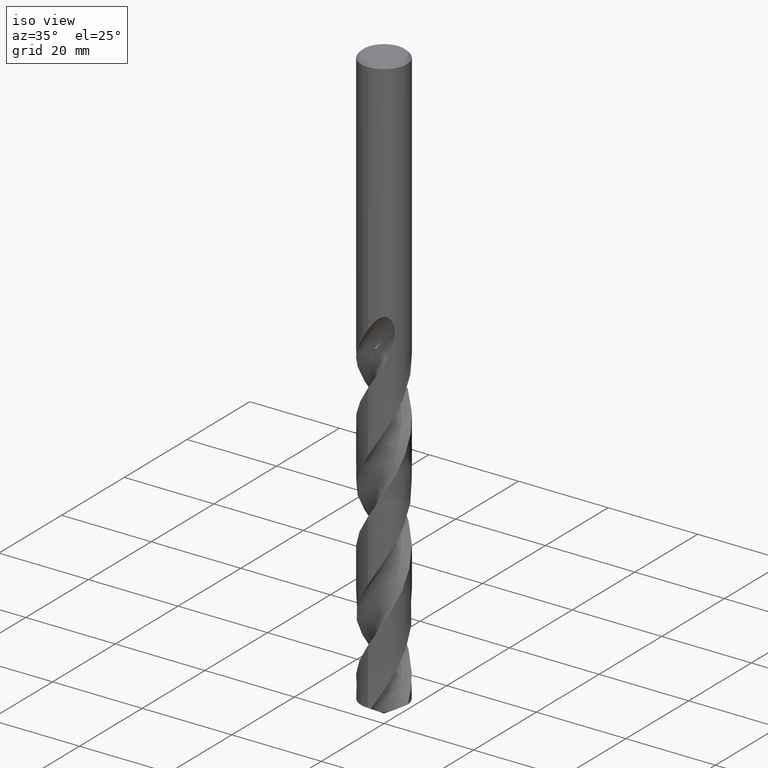
[diagram: clean part render]
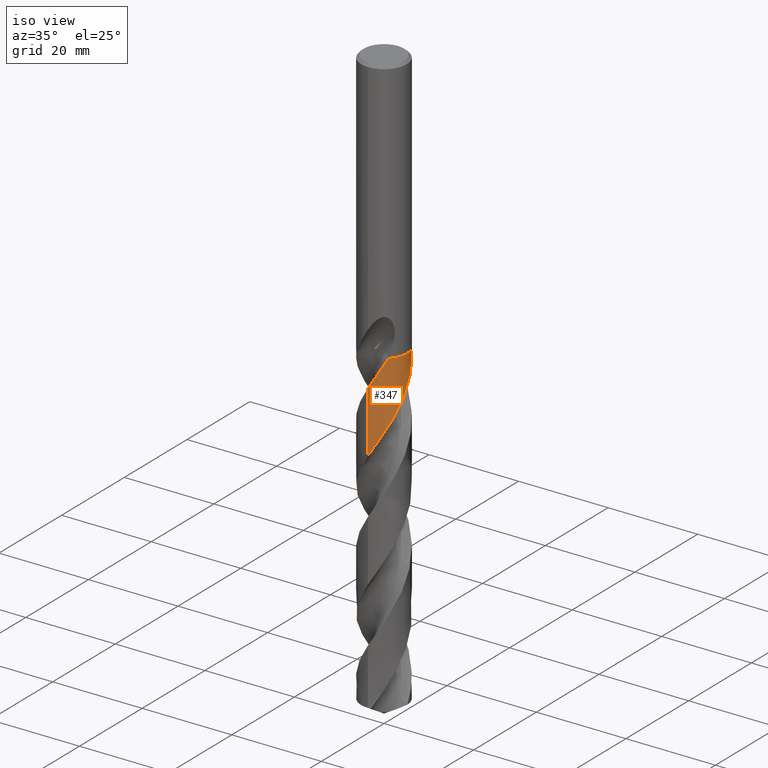
[diagram: same view with one face highlighted and labeled with its STEP entity id]
A machine part, iso view. The second image highlights one B-rep face of the part: STEP entity #347.
In plain terms, the highlighted conical surface has half-angle 0 deg.
Its self-contained STEP definition (entity closure, byte-faithful):
#281=EDGE_CURVE('',#559,#705,#781,.T.);
#311=VERTEX_POINT('',#813);
#327=EDGE_CURVE('',#639,#493,#830,.T.);
#347=ADVANCED_FACE('',(#851),#852,.T.);
#387=EDGE_CURVE('',#311,#419,#896,.T.);
#405=EDGE_CURVE('',#639,#311,#915,.T.);
#419=VERTEX_POINT('',#930);
#493=VERTEX_POINT('',#1007);
#559=VERTEX_POINT('',#1083);
#639=VERTEX_POINT('',#1169);
#641=EDGE_CURVE('',#705,#493,#1171,.T.);
#701=EDGE_CURVE('',#419,#559,#1240,.T.);
#705=VERTEX_POINT('',#1244);
#781=B_SPLINE_CURVE_WITH_KNOTS('',3,(#1345,#1346,#1347,#1348),.UNSPECIFIED.,.F.,.F.,(4,4),(0.0,0.00532653750866687),.UNSPECIFIED.);
#813=CARTESIAN_POINT('',(3.24976189373566,3.93039790809002,-59.005));
#830=LINE('',#2602,#2603);
#851=FACE_OUTER_BOUND('',#2651,.T.);
#852=CONICAL_SURFACE('',#2652,5.09995,1.40972917285629E-006);
#896=B_SPLINE_CURVE_WITH_KNOTS('',3,(#2752,#2753,#2754,#2755),.UNSPECIFIED.,.F.,.F.,(4,4),(0.0,0.0058712640969635),.UNSPECIFIED.);
#915=B_SPLINE_CURVE_WITH_KNOTS('',3,(#2780,#2781,#2782,#2783,#2784,#2785,#2786,#2787,#2788,#2789,#2790,#2791,#2792,#2793,#2794,#2795,#2796,#2797,#2798,#2799,#2800,#2801,#2802,#2803,#2804,#2805,#2806,#2807,#2808,#2809,#2810,#2811,#2812,#2813,#2814,#2815,#2816,#2817,#2818,#2819,#2820,#2821,#2822,#2823,#2824,#2825,#2826,#2827,#2828,#2829,#2830,#2831,#2832,#2833,#2834,#2835,#2836,#2837,#2838,#2839,#2840,#2841,#2842,#2843,#2844,#2845,#2846,#2847,#2848,#2849,#2850,#2851,#2852,#2853,#2854,#2855,#2856,#2857,#2858,#2859,#2860,#2861,#2862,#2863,#2864,#2865,#2866,#2867,#2868,#2869,#2870,#2871,#2872,#2873,#2874,#2875,#2876,#2877,#2878,#2879,#2880,#2881,#2882,#2883,#2884,#2885,#2886,#2887,#2888,#2889,#2890,#2891,#2892,#2893,#2894,#2895,#2896,#2897,#2898,#2899,#2900,#2901,#2902,#2903,#2904,#2905,#2906,#2907,#2908,#2909,#2910,#2911,#2912,#2913,#2914,#2915,#2916,#2917),.UNSPECIFIED.,.F.,.F.,(4,2,2,2,2,2,2,2,2,2,2,2,2,2,2,2,2,2,2,2,2,2,2,2,2,2,2,2,2,2,2,2,2,2,2,2,2,2,2,2,2,2,2,2,2,2,2,2,2,2,2,2,2,2,2,2,2,2,2,2,2,2,2,2,2,2,2,2,4),(0.0,1.35819358316742,2.69934536195886,4.05520168944573,5.40415736969046,6.76043240210848,8.10698661939128,9.48113486955117,10.3713032153794,11.6403666826662,13.1815259442731,14.5082246879664,15.9880688682202,17.7748375769271,18.5943350431345,19.9484386314124,21.3055828867592,22.6604061582878,24.0185972983327,25.3743538408848,26.733306816541,28.0896305412516,29.4499066257703,30.8340750493841,32.294845160958,34.0864224970718,34.9270897487377,36.2923406772041,37.76511834291,39.5580117459152,40.3867133952779,41.7455721244863,43.1079717390508,44.467821507852,45.8309747369556,47.0376377425295,48.6585351219551,50.4543455809623,51.3477936908825,52.7094543905171,54.0739639629636,55.4364612609895,56.8017487588754,58.1649487289042,59.5311319727536,60.8949738251213,62.2623068158816,63.6188130170231,65.0891107108994,66.8898904966181,67.6779439762881,69.0163803707392,69.6004009209465,70.4622464885194,71.9968451027027,74.1309195733213,75.2393395625227,77.2056972098737,78.6792063987878,80.1447009735569,80.9526321778372,81.545992523029,82.0163536148942,82.4957734809668,82.838365442892,83.1916257336939,83.6598471238588,84.7616834517382,86.4258500121584),.UNSPECIFIED.);
#930=CARTESIAN_POINT('',(3.24738943427791,3.93235830922618,-59.0));
#1007=CARTESIAN_POINT('',(2.1150653316351E-012,-5.09990898163798,-65.3711797724177));
#1083=CARTESIAN_POINT('',(3.54614367867005,-3.66522100564597,-59.0));
#1169=CARTESIAN_POINT('',(1.14147457562626E-014,-5.09992826794846,-79.0520419207765));
#1171=B_SPLINE_CURVE_WITH_KNOTS('',3,(#6610,#6611,#6612,#6613,#6614,#6615,#6616,#6617,#6618,#6619,#6620,#6621,#6622,#6623,#6624,#6625,#6626,#6627,#6628,#6629,#6630,#6631,#6632,#6633,#6634,#6635,#6636,#6637,#6638,#6639,#6640,#6641,#6642,#6643,#6644,#6645,#6646,#6647,#6648,#6649,#6650,#6651,#6652,#6653,#6654,#6655,#6656,#6657,#6658,#6659,#6660,#6661,#6662,#6663,#6664,#6665,#6666,#6667,#6668,#6669,#6670,#6671,#6672,#6673,#6674,#6675,#6676,#6677,#6678,#6679,#6680,#6681,#6682,#6683,#6684,#6685,#6686,#6687,#6688,#6689,#6690,#6691,#6692,#6693,#6694,#6695,#6696,#6697,#6698,#6699,#6700,#6701,#6702,#6703,#6704,#6705,#6706,#6707,#6708,#6709,#6710,#6711,#6712,#6713,#6714,#6715,#6716,#6717,#6718,#6719,#6720,#6721,#6722,#6723,#6724,#6725,#6726,#6727,#6728,#6729,#6730,#6731,#6732,#6733,#6734,#6735,#6736,#6737,#6738,#6739,#6740,#6741,#6742,#6743,#6744,#6745,#6746,#6747,#6748,#6749,#6750,#6751,#6752,#6753,#6754,#6755,#6756,#6757,#6758,#6759,#6760,#6761),.UNSPECIFIED.,.F.,.F.,(4,2,2,2,2,2,2,2,2,2,2,2,2,2,2,2,2,2,2,2,2,2,2,2,2,2,2,2,2,2,2,2,2,2,2,2,2,2,2,2,2,2,2,2,2,2,2,2,2,2,2,2,2,2,2,2,2,2,2,2,2,2,2,2,2,2,2,2,2,2,2,2,2,2,2,4),(0.0,0.122933842629468,0.32471004364131,0.403058330330682,0.438959925151562,0.495304332166999,1.11434990560632,1.28965229208137,1.40309881203756,1.51530469185508,1.65470211699125,1.92898475709121,2.12809138687462,2.63258843435939,3.08564494011859,3.5530316238777,4.02683247506601,4.11511133553031,5.01424501187339,5.88063464801732,10.3219833483064,11.5933710131938,13.3371763852002,13.6116839165812,15.8588278460843,16.4753071343638,18.3090390352944,19.0392065817641,21.4197852541912,21.4861110326395,23.5017328970769,24.3687292752562,26.7420339427305,26.8087512667149,28.771661315384,30.50988496015,31.3920100813244,33.1336662814532,34.0147432776406,35.7629012586476,36.6437561311314,38.3930462951039,39.2726365619277,39.7121885736498,40.438652706302,41.7102953685346,43.4767482356812,45.2132195715509,45.8351684716752,47.1624853634274,48.9241616240812,50.6669325104451,50.9501000548284,53.0662167992777,53.7907750162823,55.0736617594982,56.838823133276,58.574959146226,59.1956639113866,61.027734986389,61.7698377795916,62.9959792174872,64.7640601083372,66.4957305812599,67.1609029381855,68.4724388472158,70.2347802248773,71.6852882126722,72.9501263375654,74.0712701527379,76.0338830492331,76.7738802410423,78.0686732254349,80.0082725128086,80.4946786212384,81.9588665965841),.UNSPECIFIED.);
#1240=CIRCLE('',#7002,5.0999);
#1244=CARTESIAN_POINT('',(3.54482373158268,-3.66649761951416,-59.005));
#1345=CARTESIAN_POINT('',(3.54614367867005,-3.66522100564597,-59.0));
#1346=CARTESIAN_POINT('',(3.54570385182422,-3.66564654647131,-59.0016667069327));
#1347=CARTESIAN_POINT('',(3.54526386948426,-3.66607208446061,-59.0033333736799));
#1348=CARTESIAN_POINT('',(3.54482373158268,-3.66649761951416,-59.005));
#2602=CARTESIAN_POINT('',(6.2503368134288E-016,-5.09995,-94.4678054214797));
#2603=VECTOR('',#7308,1.0);
#2651=EDGE_LOOP('',(#7320,#7321,#7322,#7323,#7324,#7325));
#2652=AXIS2_PLACEMENT_3D('',#7326,#7327,#7328);
#2752=CARTESIAN_POINT('',(3.24976189373566,3.93039790809002,-59.005));
#2753=CARTESIAN_POINT('',(3.2489714341706,3.93105147891154,-59.0033332029447));
#2754=CARTESIAN_POINT('',(3.24818061430083,3.93170494616426,-59.0016665366611));
#2755=CARTESIAN_POINT('',(3.24738943427791,3.93235830922618,-59.0));
#2780=CARTESIAN_POINT('',(0.640138656402269,-5.05966624399075,-129.935610842959));
#2781=CARTESIAN_POINT('',(0.876431840928142,-5.02977036499732,-129.550594867007));
#2782=CARTESIAN_POINT('',(1.11010936926308,-4.98338710652007,-129.16689128716));
#2783=CARTESIAN_POINT('',(1.56594032838625,-4.85931072866972,-128.40114057734));
#2784=CARTESIAN_POINT('',(1.78792036888007,-4.78210163631955,-128.019333517555));
#2785=CARTESIAN_POINT('',(2.2223207973989,-4.59648248894866,-127.254035614818));
#2786=CARTESIAN_POINT('',(2.43388624697173,-4.48804226106987,-126.870654031607));
#2787=CARTESIAN_POINT('',(2.83928968598237,-4.24313284199542,-126.103123631352));
#2788=CARTESIAN_POINT('',(3.03280798073325,-4.10705795509939,-125.719445084164));
#2789=CARTESIAN_POINT('',(3.40080956160159,-3.80801010448296,-124.95179844319));
#2790=CARTESIAN_POINT('',(3.57452354728201,-3.64542508225266,-124.568242902742));
#2791=CARTESIAN_POINT('',(3.89672124775885,-3.29864961016492,-123.801073734248));
#2792=CARTESIAN_POINT('',(4.04508885698507,-3.11494320053457,-123.417794679517));
#2793=CARTESIAN_POINT('',(4.31827009611052,-2.72405100405068,-122.645499149214));
#2794=CARTESIAN_POINT('',(4.44205388785662,-2.51714148032765,-122.256813595315));
#2795=CARTESIAN_POINT('',(4.62113232839204,-2.16317737096943,-121.613987603131));
#2796=CARTESIAN_POINT('',(4.68505376936397,-2.02099571518029,-121.36073372478));
#2797=CARTESIAN_POINT('',(4.82408153051769,-1.66956428910087,-120.747843305415));
#2798=CARTESIAN_POINT('',(4.89227066288914,-1.4577511902222,-120.388789135745));
#2799=CARTESIAN_POINT('',(5.01223509471762,-0.979966727771204,-119.591647093518));
#2800=CARTESIAN_POINT('',(5.05704532892135,-0.713331641731448,-119.153565720767));
#2801=CARTESIAN_POINT('',(5.10079736275742,-0.213488821833792,-118.340025290036));
#2802=CARTESIAN_POINT('',(5.10523987635874,0.0189830877616263,-117.964989432807));
#2803=CARTESIAN_POINT('',(5.08103449657675,0.509999554472301,-117.169283473743));
#2804=CARTESIAN_POINT('',(5.04856467128654,0.767361485066007,-116.748699584429));
#2805=CARTESIAN_POINT('',(4.93413944623304,1.32732635149346,-115.822474454051));
#2806=CARTESIAN_POINT('',(4.84353378152146,1.62713948923322,-115.318862714801));
#2807=CARTESIAN_POINT('',(4.67226275586193,2.04945687982352,-114.579830695171));
#2808=CARTESIAN_POINT('',(4.61287853278363,2.179832554697,-114.346996264466));
#2809=CARTESIAN_POINT('',(4.44086535983674,2.5188427360136,-113.730586936899));
#2810=CARTESIAN_POINT('',(4.31906566091105,2.72243559307042,-113.347972930476));
#2811=CARTESIAN_POINT('',(4.04752704024566,3.11187247979057,-112.579526825243));
#2812=CARTESIAN_POINT('',(3.89825748641805,3.29690785229222,-112.19398370653));
#2813=CARTESIAN_POINT('',(3.5756749855988,3.64422253277086,-111.425369124643));
#2814=CARTESIAN_POINT('',(3.40253853833695,3.80639968676087,-111.042787096457));
#2815=CARTESIAN_POINT('',(3.03423716202088,4.10604684869187,-110.274330780252));
#2816=CARTESIAN_POINT('',(2.83974535230874,4.24285809987763,-109.888766680791));
#2817=CARTESIAN_POINT('',(2.43394535387837,4.48795007462632,-109.120077493573));
#2818=CARTESIAN_POINT('',(2.22283199900097,4.5961869903887,-108.737472467405));
#2819=CARTESIAN_POINT('',(1.78627237542817,4.7828236759302,-107.969004802024));
#2820=CARTESIAN_POINT('',(1.5616564674458,4.8607783074124,-107.583436256543));
#2821=CARTESIAN_POINT('',(1.10420657396458,4.98461994391826,-106.814865452508));
#2822=CARTESIAN_POINT('',(0.87152550924729,5.03053697651607,-106.432351112259));
#2823=CARTESIAN_POINT('',(0.400426945455281,5.08977742074049,-105.663896931296));
#2824=CARTESIAN_POINT('',(0.162933950546849,5.10288176953019,-105.278289329599));
#2825=CARTESIAN_POINT('',(-0.315753821900516,5.09590359557334,-104.502005336264));
#2826=CARTESIAN_POINT('',(-0.556764262247711,5.07524248639199,-104.11196045335));
#2827=CARTESIAN_POINT('',(-1.04756436318034,4.99773126687521,-103.307720100876));
#2828=CARTESIAN_POINT('',(-1.29602060351322,4.93911379744868,-102.893738851204));
#2829=CARTESIAN_POINT('',(-1.83679702947122,4.76795581254432,-101.974271660872));
#2830=CARTESIAN_POINT('',(-2.12533454063386,4.64651683031713,-101.470865336137));
#2831=CARTESIAN_POINT('',(-2.53023932992491,4.43045741787058,-100.72676471466));
#2832=CARTESIAN_POINT('',(-2.65642761161823,4.35596727040584,-100.488641171889));
#2833=CARTESIAN_POINT('',(-2.97889206370492,4.14637507251019,-99.8650451447112));
#2834=CARTESIAN_POINT('',(-3.16925403062997,4.00277237654103,-99.4805149918521));
#2835=CARTESIAN_POINT('',(-3.54287836700956,3.67745263636382,-98.678686989481));
#2836=CARTESIAN_POINT('',(-3.72357124764555,3.49434933091561,-98.261556209157));
#2837=CARTESIAN_POINT('',(-4.09177077066028,3.06016780444835,-97.3388353351137));
#2838=CARTESIAN_POINT('',(-4.27152202509543,2.80378695686861,-96.8353329022803));
#2839=CARTESIAN_POINT('',(-4.49836936115265,2.40728840926082,-96.0946029965384));
#2840=CARTESIAN_POINT('',(-4.56467426083231,2.27905922320978,-95.8599850056969));
#2841=CARTESIAN_POINT('',(-4.72522800311275,1.93333586744424,-95.2418649963619));
#2842=CARTESIAN_POINT('',(-4.80994430457321,1.71176642729756,-94.8593011208798));
#2843=CARTESIAN_POINT('',(-4.94819108794745,1.25753559016299,-94.0908436321443));
#2844=CARTESIAN_POINT('',(-5.00136113100873,1.02574716481637,-93.7052666587611));
#2845=CARTESIAN_POINT('',(-5.07492216774109,0.557417111425721,-92.9365646135869));
#2846=CARTESIAN_POINT('',(-5.09535085134273,0.3210629605598,-92.5539686888026));
#2847=CARTESIAN_POINT('',(-5.10316887529229,-0.153660599782964,-91.7854960339625));
#2848=CARTESIAN_POINT('',(-5.09045696113976,-0.391090991234825,-91.3999177713237));
#2849=CARTESIAN_POINT('',(-5.03552783858029,-0.834851899127403,-90.6747362369012));
#2850=CARTESIAN_POINT('',(-4.99687423801345,-1.04158582315015,-90.3352200420593));
#2851=CARTESIAN_POINT('',(-4.87652767511979,-1.51943849743139,-89.5378499827628));
#2852=CARTESIAN_POINT('',(-4.78494043329829,-1.78698163771308,-89.0798913323278));
#2853=CARTESIAN_POINT('',(-4.54650850451778,-2.33158721857657,-88.116253712777));
#2854=CARTESIAN_POINT('',(-4.39517761863751,-2.60564414081241,-87.6128539028571));
#2855=CARTESIAN_POINT('',(-4.13247200923479,-2.9926924510545,-86.8544262258201));
#2856=CARTESIAN_POINT('',(-4.03943281528557,-3.11713157827663,-86.6019109472638));
#2857=CARTESIAN_POINT('',(-3.79045373260375,-3.42022249007192,-85.9659075230935));
#2858=CARTESIAN_POINT('',(-3.62747045308061,-3.5926378141203,-85.583275830797));
#2859=CARTESIAN_POINT('',(-3.27809786604228,-3.9140627488459,-84.8148459326593));
#2860=CARTESIAN_POINT('',(-3.09234131183533,-4.06239382829103,-84.4293331807402));
#2861=CARTESIAN_POINT('',(-2.70217550324172,-4.331707405995,-83.6606845675585));
#2862=CARTESIAN_POINT('',(-2.49799599064469,-4.45259268291802,-83.2780374462141));
#2863=CARTESIAN_POINT('',(-2.07359292593645,-4.66540431918989,-82.5095875668705));
#2864=CARTESIAN_POINT('',(-1.85416923170803,-4.75685107651975,-82.1240720033809));
#2865=CARTESIAN_POINT('',(-1.40497940039366,-4.908301703726,-81.3554472380824));
#2866=CARTESIAN_POINT('',(-1.17543563087727,-4.96828656635596,-80.9728231340922));
#2867=CARTESIAN_POINT('',(-0.708858872454888,-5.05601371963334,-80.2043737704523));
#2868=CARTESIAN_POINT('',(-0.472727574955397,-5.08350946300567,-79.8188336248445));
#2869=CARTESIAN_POINT('',(0.000744857199105137,-5.10542217048593,-79.0502423895464));
#2870=CARTESIAN_POINT('',(0.23789557137243,-5.09989039801063,-78.6676735105633));
#2871=CARTESIAN_POINT('',(0.710635530490641,-5.0557640990377,-77.8992208653551));
#2872=CARTESIAN_POINT('',(0.945281954037033,-5.0171684875767,-77.5136520209762));
#2873=CARTESIAN_POINT('',(1.40517871951819,-4.90816782828987,-76.7472931438982));
#2874=CARTESIAN_POINT('',(1.63030948887714,-4.83806358222553,-76.3670061643812));
#2875=CARTESIAN_POINT('',(2.08796246237591,-4.65992255015026,-75.5721291144606));
#2876=CARTESIAN_POINT('',(2.31850646428099,-4.54959187475455,-75.1576746611063));
#2877=CARTESIAN_POINT('',(2.8105554013808,-4.26703069773296,-74.2378255513821));
#2878=CARTESIAN_POINT('',(3.06653722803823,-4.08694114224915,-73.7345326433136));
#2879=CARTESIAN_POINT('',(3.40853925299577,-3.79601404958546,-73.0066330211467));
#2880=CARTESIAN_POINT('',(3.50895364112624,-3.7033876723305,-72.7846330284658));
#2881=CARTESIAN_POINT('',(3.76962693381396,-3.44280440672508,-72.1868109980918));
#2882=CARTESIAN_POINT('',(3.92243515072643,-3.26766792819749,-71.8118475327496));
#2883=CARTESIAN_POINT('',(4.1241561005737,-3.00179477922538,-71.2717605571088));
#2884=CARTESIAN_POINT('',(4.1829766756568,-2.91926596191913,-71.1077599075896));
#2885=CARTESIAN_POINT('',(4.32233707033752,-2.71088174533762,-70.7013729578897));
#2886=CARTESIAN_POINT('',(4.39983828296361,-2.58319076543573,-70.4586233669899));
#2887=CARTESIAN_POINT('',(4.59952658381891,-2.21905702511375,-69.7851254055891));
#2888=CARTESIAN_POINT('',(4.70902557793144,-1.97612709531607,-69.3558413614239));
#2889=CARTESIAN_POINT('',(4.92436674311903,-1.37723738794351,-68.325357877462));
#2890=CARTESIAN_POINT('',(5.01134319300328,-1.01624756649756,-67.7247748594422));
#2891=CARTESIAN_POINT('',(5.08294631120462,-0.458001208709523,-66.8141984930318));
#2892=CARTESIAN_POINT('',(5.09659218083088,-0.266034690287204,-66.5035620546639));
#2893=CARTESIAN_POINT('',(5.1043124703566,0.26705824740109,-65.6397602917764));
#2894=CARTESIAN_POINT('',(5.07501471490335,0.607831988947793,-65.0883734863725));
#2895=CARTESIAN_POINT('',(4.96479043298837,1.1937930090825,-64.1208858149921));
#2896=CARTESIAN_POINT('',(4.89906765969465,1.43956716701127,-63.7053784184987));
#2897=CARTESIAN_POINT('',(4.73274782589868,1.91666576602098,-62.8874127233174));
#2898=CARTESIAN_POINT('',(4.63626513074192,2.13847973463021,-62.5094936156607));
#2899=CARTESIAN_POINT('',(4.46230935296118,2.47280308988635,-61.9075455209065));
#2900=CARTESIAN_POINT('',(4.39670117278418,2.58746467375437,-61.6935613483543));
#2901=CARTESIAN_POINT('',(4.27729575130454,2.77900866338149,-61.3184976564662));
#2902=CARTESIAN_POINT('',(4.22356871755049,2.86001209293302,-61.154335986229));
#2903=CARTESIAN_POINT('',(4.12454611381751,3.00048352402342,-60.849393231334));
#2904=CARTESIAN_POINT('',(4.0950858744143,3.03986053496386,-60.7569560655448));
#2905=CARTESIAN_POINT('',(4.04839222190437,3.10178273526444,-60.6152219544524));
#2906=CARTESIAN_POINT('',(4.02401166459348,3.13336839578001,-60.5442280349555));
#2907=CARTESIAN_POINT('',(3.98058525702963,3.18822706223913,-60.4231823975851));
#2908=CARTESIAN_POINT('',(3.9620308613996,3.21126354933307,-60.3730155196517));
#2909=CARTESIAN_POINT('',(3.92333370791963,3.25843679749617,-60.2716058144554));
#2910=CARTESIAN_POINT('',(3.90318149970899,3.28255858839638,-60.220435928525));
#2911=CARTESIAN_POINT('',(3.85504472942766,3.33907418154321,-60.1020783455515));
#2912=CARTESIAN_POINT('',(3.83157146186357,3.36594645523184,-60.0471388301737));
#2913=CARTESIAN_POINT('',(3.74395587738833,3.46414731241145,-59.8497429828233));
#2914=CARTESIAN_POINT('',(3.67782779918544,3.53450939422581,-59.714623942659));
#2915=CARTESIAN_POINT('',(3.4987104654805,3.71365607103295,-59.3822777388299));
#2916=CARTESIAN_POINT('',(3.38023198654755,3.82252196014507,-59.1907932114585));
#2917=CARTESIAN_POINT('',(3.24976189373566,3.93039790809002,-59.005));
#6610=CARTESIAN_POINT('',(3.54482373158268,-3.66649761951416,-59.005));
#6611=CARTESIAN_POINT('',(3.5301141582937,-3.68071912056124,-59.0405045003693));
#6612=CARTESIAN_POINT('',(3.51530136380469,-3.69486923947659,-59.0760044474348));
#6613=CARTESIAN_POINT('',(3.47587426376301,-3.73207924071342,-59.1697214923518));
#6614=CARTESIAN_POINT('',(3.45108197897677,-3.75501944814249,-59.2278681538526));
#6615=CARTESIAN_POINT('',(3.41613758410848,-3.78670866757869,-59.3085550716889));
#6616=CARTESIAN_POINT('',(3.40631383326843,-3.79554821926465,-59.3311027475822));
#6617=CARTESIAN_POINT('',(3.39190541601834,-3.80841170717043,-59.3639679445843));
#6618=CARTESIAN_POINT('',(3.38736658340096,-3.81244934397573,-59.3742915116309));
#6619=CARTESIAN_POINT('',(3.37567398788852,-3.82281335949674,-59.4008097123456));
#6620=CARTESIAN_POINT('',(3.3685045780485,-3.82913235063449,-59.4169963298206));
#6621=CARTESIAN_POINT('',(3.28220452334304,-3.90476436465992,-59.6109444833063));
#6622=CARTESIAN_POINT('',(3.20122793136535,-3.97151406579347,-59.7838340906072));
#6623=CARTESIAN_POINT('',(3.09089956672447,-4.0566340822972,-60.0083729676889));
#6624=CARTESIAN_POINT('',(3.06631108185612,-4.07525354701785,-60.0577752837803));
#6625=CARTESIAN_POINT('',(3.02534701695128,-4.10568798427969,-60.1391387612104));
#6626=CARTESIAN_POINT('',(3.00915454344047,-4.11757020257492,-60.1710602848246));
#6627=CARTESIAN_POINT('',(2.97700128582683,-4.14087563437377,-60.2340659244734));
#6628=CARTESIAN_POINT('',(2.96092911028014,-4.15238349506917,-60.2653690298824));
#6629=CARTESIAN_POINT('',(2.92469681878137,-4.17800816814242,-60.3355541901607));
#6630=CARTESIAN_POINT('',(2.90450545528029,-4.19207040241056,-60.3744043868009));
#6631=CARTESIAN_POINT('',(2.84423489310654,-4.23340018475543,-60.4897181820379));
#6632=CARTESIAN_POINT('',(2.80391828644668,-4.26020960991656,-60.5660064281563));
#6633=CARTESIAN_POINT('',(2.733729527943,-4.30545711596594,-60.6979719703946));
#6634=CARTESIAN_POINT('',(2.70362794353197,-4.32442876978295,-60.7542943994457));
#6635=CARTESIAN_POINT('',(2.59583145880421,-4.39077490673429,-60.9559337819422));
#6636=CARTESIAN_POINT('',(2.51766665017023,-4.43603590941465,-61.1016467073776));
#6637=CARTESIAN_POINT('',(2.36810927186082,-4.51747324540703,-61.3776759568733));
#6638=CARTESIAN_POINT('',(2.29651511299541,-4.55428347544363,-61.5086279652676));
#6639=CARTESIAN_POINT('',(2.14953155144395,-4.6255175844491,-61.7746143505579));
#6640=CARTESIAN_POINT('',(2.07400206073034,-4.65987369998517,-61.9098188082933));
#6641=CARTESIAN_POINT('',(1.92025701731571,-4.72532693380416,-62.1817977692696));
#6642=CARTESIAN_POINT('',(1.84193442051033,-4.75640915286752,-62.3187187908546));
#6643=CARTESIAN_POINT('',(1.74798440956136,-4.79101532391283,-62.4809584508826));
#6644=CARTESIAN_POINT('',(1.73318991422075,-4.79638726787873,-62.5064505739261));
#6645=CARTESIAN_POINT('',(1.56745537748698,-4.85569882876177,-62.7915124476376));
#6646=CARTESIAN_POINT('',(1.41401675919574,-4.90258372127399,-63.0504467780487));
#6647=CARTESIAN_POINT('',(1.10877514483782,-4.98031680409968,-63.5600058142472));
#6648=CARTESIAN_POINT('',(0.957473292506699,-5.01159593935642,-63.8102018291533));
#6649=CARTESIAN_POINT('',(0.02421483423032,-5.16080531253758,-65.3426687175424));
#6650=CARTESIAN_POINT('',(-0.775443024790427,-5.10235844343622,-66.607449368644));
#6651=CARTESIAN_POINT('',(-1.74645669934032,-4.79690769229844,-68.2563943265831));
#6652=CARTESIAN_POINT('',(-1.95772739551051,-4.71462444274479,-68.6230347657941));
#6653=CARTESIAN_POINT('',(-2.44400344260695,-4.48691574627191,-69.4935399595513));
#6654=CARTESIAN_POINT('',(-2.71271911947232,-4.32976490016658,-69.9958234432842));
#6655=CARTESIAN_POINT('',(-3.00533745732634,-4.12061722967612,-70.57835820235));
#6656=CARTESIAN_POINT('',(-3.04471820206683,-4.09160491443276,-70.6575755167927));
#6657=CARTESIAN_POINT('',(-3.40256649444617,-3.81994726630929,-71.3855027709397));
#6658=CARTESIAN_POINT('',(-3.69190257823994,-3.54110142481443,-72.0325612450507));
#6659=CARTESIAN_POINT('',(-4.01524802184878,-3.1462728518488,-72.8592037739475));
#6660=CARTESIAN_POINT('',(-4.0820775804185,-3.05906614703039,-73.0370868456282));
#6661=CARTESIAN_POINT('',(-4.33625880534776,-2.70421276335561,-73.7445257583535));
#6662=CARTESIAN_POINT('',(-4.50057760496517,-2.42091113875206,-74.2730190521326));
#6663=CARTESIAN_POINT('',(-4.69086892868777,-2.00546601684095,-75.0131879964462));
#6664=CARTESIAN_POINT('',(-4.7405035586296,-1.88514315706695,-75.2238078377981));
#6665=CARTESIAN_POINT('',(-4.93211420611781,-1.36505948415685,-76.1219861875003));
#6666=CARTESIAN_POINT('',(-5.02855645911463,-0.950210811837758,-76.8070945981901));
#6667=CARTESIAN_POINT('',(-5.07372632656992,-0.516417600542111,-77.5135434693066));
#6668=CARTESIAN_POINT('',(-5.07490973390916,-0.504655752710917,-77.532691880159));
#6669=CARTESIAN_POINT('',(-5.11077310529382,-0.135323599541346,-78.1338115552797));
#6670=CARTESIAN_POINT('',(-5.10761634774709,0.224955410333157,-78.7149077473281));
#6671=CARTESIAN_POINT('',(-5.04899041588319,0.735428205707356,-79.5472673887234));
#6672=CARTESIAN_POINT('',(-5.02439084794656,0.888058612104634,-79.797346243608));
#6673=CARTESIAN_POINT('',(-4.90671206503104,1.45339336071199,-80.7330935421893));
#6674=CARTESIAN_POINT('',(-4.76931995954074,1.85523663781659,-81.4162505886556));
#6675=CARTESIAN_POINT('',(-4.57864409027416,2.24621286312125,-82.1208364527678));
#6676=CARTESIAN_POINT('',(-4.57339337591666,2.25688440970025,-82.1401006156568));
#6677=CARTESIAN_POINT('',(-4.41251595836942,2.58098443200252,-82.7262292314795));
#6678=CARTESIAN_POINT('',(-4.22506205571359,2.87761085090261,-83.2923647099696));
#6679=CARTESIAN_POINT('',(-3.81716217607175,3.39627008276322,-84.3613171259327));
#6680=CARTESIAN_POINT('',(-3.60382324232835,3.62184624506401,-84.8622509646532));
#6681=CARTESIAN_POINT('',(-3.25343478490168,3.9305519628978,-85.6191693222311));
#6682=CARTESIAN_POINT('',(-3.13071428150149,4.02898587057419,-85.8738386110062));
#6683=CARTESIAN_POINT('',(-2.75267784772962,4.30448078228556,-86.6316394058913));
#6684=CARTESIAN_POINT('',(-2.4856108164159,4.46401790762888,-87.1335083044132));
#6685=CARTESIAN_POINT('',(-2.06419986810364,4.6661684140679,-87.8911332333632));
#6686=CARTESIAN_POINT('',(-1.91954485255188,4.72751715008091,-88.1455135512126));
#6687=CARTESIAN_POINT('',(-1.48003488532077,4.89040206199129,-88.9049098795871));
#6688=CARTESIAN_POINT('',(-1.17854155131913,4.97167144941943,-89.4086027941294));
#6689=CARTESIAN_POINT('',(-0.716910289295009,5.05174330898532,-90.1680370284536));
#6690=CARTESIAN_POINT('',(-0.561055830534847,5.07142078715872,-90.4223531649367));
#6691=CARTESIAN_POINT('',(-0.0936364124621167,5.10861346409194,-91.1820104254345));
#6692=CARTESIAN_POINT('',(0.218795551277934,5.10477795601846,-91.6859812882582));
#6693=CARTESIAN_POINT('',(0.684755604414998,5.05619828050845,-92.4453944663755));
#6694=CARTESIAN_POINT('',(0.83985459255833,5.03276228669915,-92.6993595599091));
#6695=CARTESIAN_POINT('',(1.07051020317718,4.98694475734475,-93.0803753337135));
#6696=CARTESIAN_POINT('',(1.14701147901229,4.96990731203141,-93.2073085442953));
#6697=CARTESIAN_POINT('',(1.34884418903933,4.92004812978575,-93.544073886191));
#6698=CARTESIAN_POINT('',(1.47333983230713,4.88421102116749,-93.7537276039953));
#6699=CARTESIAN_POINT('',(1.81160150173127,4.77273152371877,-94.330908009109));
#6700=CARTESIAN_POINT('',(2.021923884537,4.6875052393102,-94.6980413667177));
#6701=CARTESIAN_POINT('',(2.50920521886555,4.4511296751754,-95.5756338178372));
#6702=CARTESIAN_POINT('',(2.77915316709497,4.28776570711682,-96.0843347411029));
#6703=CARTESIAN_POINT('',(3.28112092338396,3.91657391215885,-97.0963000011894));
#6704=CARTESIAN_POINT('',(3.51276054870782,3.71024661789459,-97.5969468924234));
#6705=CARTESIAN_POINT('',(3.8000697432729,3.40313309553685,-98.2781384836702));
#6706=CARTESIAN_POINT('',(3.87315815265724,3.31971147635025,-98.4576906113016));
#6707=CARTESIAN_POINT('',(4.09349282915403,3.05104098987733,-99.0208175923624));
#6708=CARTESIAN_POINT('',(4.2306286221968,2.85785617552366,-99.4040119874164));
#6709=CARTESIAN_POINT('',(4.51742276482461,2.38770037290215,-100.296365359902));
#6710=CARTESIAN_POINT('',(4.65584213165674,2.10506751376838,-100.803824436709));
#6711=CARTESIAN_POINT('',(4.87771511442162,1.5211772577147,-101.816305996132));
#6712=CARTESIAN_POINT('',(4.9613243326834,1.22125292078675,-102.318705146607));
#6713=CARTESIAN_POINT('',(5.02618211621315,0.865826057229328,-102.903899772233));
#6714=CARTESIAN_POINT('',(5.03450782211086,0.816022534580071,-102.985674602688));
#6715=CARTESIAN_POINT('',(5.09877318874251,0.393068738932441,-103.678806864466));
#6716=CARTESIAN_POINT('',(5.11388766618653,0.0148236316666875,-104.288939182462));
#6717=CARTESIAN_POINT('',(5.0779642304305,-0.490531464600615,-105.109596896385));
#6718=CARTESIAN_POINT('',(5.06390757157353,-0.619011629966166,-105.318758726198));
#6719=CARTESIAN_POINT('',(5.0114965298159,-0.973075966247004,-105.898792740203));
#6720=CARTESIAN_POINT('',(4.96281526880706,-1.19685245588092,-106.269262696997));
#6721=CARTESIAN_POINT('',(4.81184378107976,-1.71898365185896,-107.149963022337));
#6722=CARTESIAN_POINT('',(4.69662254533797,-2.01256978574502,-107.658434273019));
#6723=CARTESIAN_POINT('',(4.41591051779701,-2.57006217975881,-108.670210008573));
#6724=CARTESIAN_POINT('',(4.25180336151135,-2.83333119722158,-109.170896722548));
#6725=CARTESIAN_POINT('',(3.99791131979722,-3.16838662976816,-109.851818953267));
#6726=CARTESIAN_POINT('',(3.92820494827047,-3.25440749362728,-110.031065492722));
#6727=CARTESIAN_POINT('',(3.64195765831507,-3.58504897593332,-110.739843907846));
#6728=CARTESIAN_POINT('',(3.40486296474402,-3.81096279730433,-111.268324691879));
#6729=CARTESIAN_POINT('',(3.04358565972628,-4.09436826357742,-112.012096967368));
#6730=CARTESIAN_POINT('',(2.93631095565893,-4.17197034828602,-112.226340960396));
#6731=CARTESIAN_POINT('',(2.64413892571784,-4.36647375061623,-112.79512410526));
#6732=CARTESIAN_POINT('',(2.45451741615798,-4.47581448300005,-113.149298586519));
#6733=CARTESIAN_POINT('',(1.97576312029474,-4.71227639928718,-114.014590568113));
#6734=CARTESIAN_POINT('',(1.68075132672587,-4.82537397687378,-114.523932607594));
#6735=CARTESIAN_POINT('',(1.07993258676176,-4.9938830791442,-115.535399454728));
#6736=CARTESIAN_POINT('',(0.775608036420513,-5.05011519595265,-116.034933361126));
#6737=CARTESIAN_POINT('',(0.349830087360052,-5.08935259323611,-116.727517447221));
#6738=CARTESIAN_POINT('',(0.231348154876224,-5.09611249835487,-116.919604542674));
#6739=CARTESIAN_POINT('',(-0.121084273572733,-5.10390695462723,-117.490890936961));
#6740=CARTESIAN_POINT('',(-0.355021498017795,-5.09298626881456,-117.869697216249));
#6741=CARTESIAN_POINT('',(-0.899638462149591,-5.02984066907775,-118.758054813921));
#6742=CARTESIAN_POINT('',(-1.2078173486815,-4.96485356959194,-119.265868167788));
#6743=CARTESIAN_POINT('',(-1.75507973123177,-4.79546125893214,-120.194507465963));
#6744=CARTESIAN_POINT('',(-1.9960411959345,-4.70028160758079,-120.613202135882));
#6745=CARTESIAN_POINT('',(-2.43175052137023,-4.48858361270489,-121.397898449564));
#6746=CARTESIAN_POINT('',(-2.62789490327463,-4.37663358766832,-121.762964089938));
#6747=CARTESIAN_POINT('',(-2.98262736615502,-4.14171403355451,-122.452609645272));
#6748=CARTESIAN_POINT('',(-3.1427115747127,-4.02159955197208,-122.776413897327));
#6749=CARTESIAN_POINT('',(-3.56257163363484,-3.66613904712251,-123.667609147098));
#6750=CARTESIAN_POINT('',(-3.80572986407073,-3.41303683607928,-124.233266020267));
#6751=CARTESIAN_POINT('',(-4.10217623515865,-3.03306643292471,-125.014438928893));
#6752=CARTESIAN_POINT('',(-4.1792908732454,-2.92589892054987,-125.228242008344));
#6753=CARTESIAN_POINT('',(-4.37969578161533,-2.62327107865547,-125.816310045994));
#6754=CARTESIAN_POINT('',(-4.49397365927147,-2.42228556079735,-126.189872979734));
#6755=CARTESIAN_POINT('',(-4.74441309932541,-1.90267053148847,-127.124734560796));
#6756=CARTESIAN_POINT('',(-4.86254513133685,-1.57651359123044,-127.683879748321));
#6757=CARTESIAN_POINT('',(-4.96786378364625,-1.15665011965837,-128.384950111477));
#6758=CARTESIAN_POINT('',(-4.9868208850386,-1.07197113639178,-128.525464908496));
#6759=CARTESIAN_POINT('',(-5.05413585818472,-0.7306743750638,-129.0893159331));
#6760=CARTESIAN_POINT('',(-5.08491840443778,-0.47095787224433,-129.512352636463));
#6761=CARTESIAN_POINT('',(-5.09567368056929,-0.210023191941769,-129.935610842959));
#7002=AXIS2_PLACEMENT_3D('',#7788,#7789,#7790);
#7308=DIRECTION('',(-1.726363302248E-022,1.40972917285582E-006,0.999999999999006));
#7320=ORIENTED_EDGE('',*,*,#327,.F.);
#7321=ORIENTED_EDGE('',*,*,#405,.T.);
#7322=ORIENTED_EDGE('',*,*,#387,.T.);
#7323=ORIENTED_EDGE('',*,*,#701,.T.);
#7324=ORIENTED_EDGE('',*,*,#281,.T.);
#7325=ORIENTED_EDGE('',*,*,#641,.T.);
#7326=CARTESIAN_POINT('',(0.0,0.0,-94.4678054214797));
#7327=DIRECTION('',(0.0,-0.0,-1.0));
#7328=DIRECTION('',(0.0,1.0,0.0));
#7788=CARTESIAN_POINT('',(0.0,0.0,-59.0));
#7789=DIRECTION('',(0.0,0.0,-1.0));
#7790=DIRECTION('',(0.0,1.0,0.0));